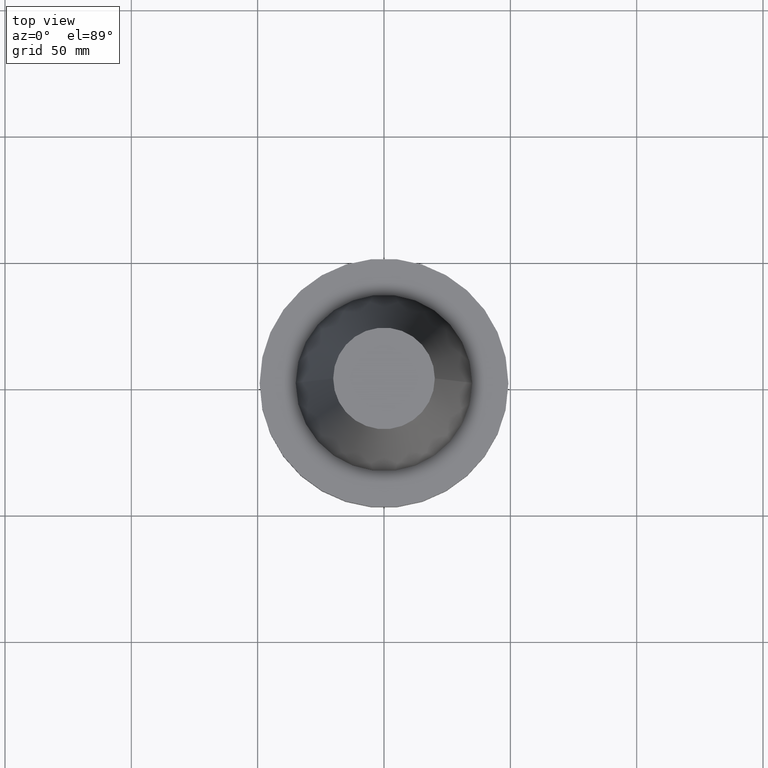
[diagram: clean part render]
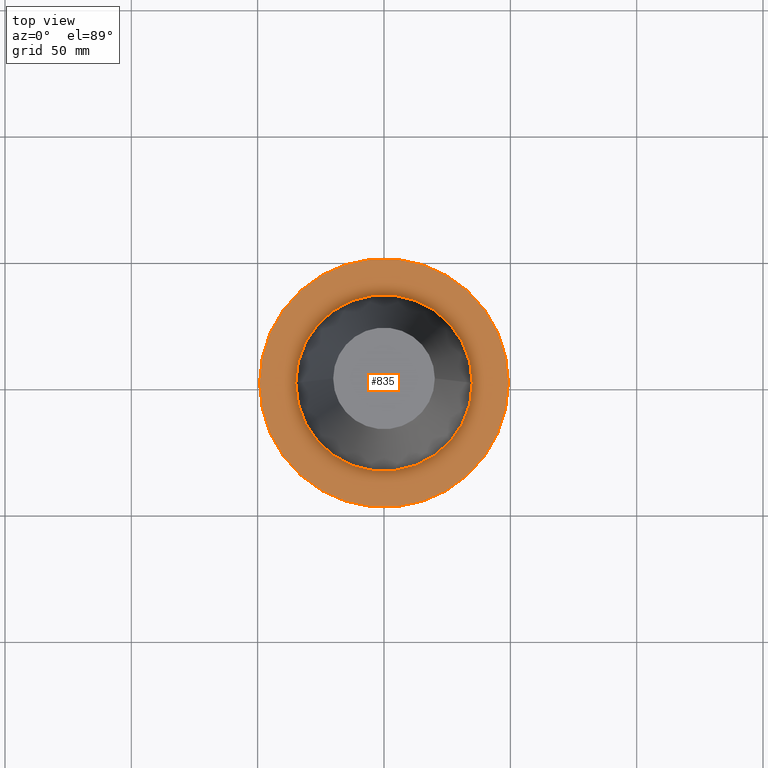
[diagram: same view with one face highlighted and labeled with its STEP entity id]
A machine part, top view. The second image highlights one B-rep face of the part: STEP entity #835.
In plain terms, the highlighted planar face has unit normal (0, 0, -1).
Its self-contained STEP definition (entity closure, byte-faithful):
#19 = CARTESIAN_POINT ( 'NONE',  ( 0.000000000000000000, 0.000000000000000000, -1.499999999999987566 ) ) ;
#20 = CARTESIAN_POINT ( 'NONE',  ( 0.000000000000000000, 49.21499999999999631, -1.499999999999992895 ) ) ;
#21 = ORIENTED_EDGE ( 'NONE', *, *, #325, .F. ) ;
#93 = AXIS2_PLACEMENT_3D ( 'NONE', #515, #295, #627 ) ;
#98 = VERTEX_POINT ( 'NONE', #457 ) ;
#101 = DIRECTION ( 'NONE',  ( 0.000000000000000000, 0.000000000000000000, -1.000000000000000000 ) ) ;
#114 = CARTESIAN_POINT ( 'NONE',  ( -34.92499999999999005, 4.277078946022130098E-15, -1.499999999999987566 ) ) ;
#130 = AXIS2_PLACEMENT_3D ( 'NONE', #20, #101, #417 ) ;
#134 = CIRCLE ( 'NONE', #684, 34.92499999999999005 ) ;
#162 = CARTESIAN_POINT ( 'NONE',  ( 0.000000000000000000, 0.000000000000000000, -1.499999999999987566 ) ) ;
#212 = CIRCLE ( 'NONE', #324, 34.92499999999999005 ) ;
#224 = CIRCLE ( 'NONE', #93, 49.21499999999999631 ) ;
#265 = VERTEX_POINT ( 'NONE', #730 ) ;
#295 = DIRECTION ( 'NONE',  ( -0.000000000000000000, -0.000000000000000000, 1.000000000000000000 ) ) ;
#309 = EDGE_LOOP ( 'NONE', ( #368, #805 ) ) ;
#324 = AXIS2_PLACEMENT_3D ( 'NONE', #705, #687, #383 ) ;
#325 = EDGE_CURVE ( 'NONE', #567, #265, #134, .T. ) ;
#350 = EDGE_CURVE ( 'NONE', #425, #98, #224, .T. ) ;
#355 = EDGE_CURVE ( 'NONE', #265, #567, #212, .T. ) ;
#364 = PLANE ( 'NONE',  #130 ) ;
#368 = ORIENTED_EDGE ( 'NONE', *, *, #350, .T. ) ;
#383 = DIRECTION ( 'NONE',  ( 1.000000000000000000, 0.000000000000000000, 0.000000000000000000 ) ) ;
#409 = EDGE_LOOP ( 'NONE', ( #794, #21 ) ) ;
#417 = DIRECTION ( 'NONE',  ( -1.000000000000000000, 0.000000000000000000, -0.000000000000000000 ) ) ;
#425 = VERTEX_POINT ( 'NONE', #618 ) ;
#426 = DIRECTION ( 'NONE',  ( 1.000000000000000000, 0.000000000000000000, 0.000000000000000000 ) ) ;
#432 = DIRECTION ( 'NONE',  ( 1.000000000000000000, 0.000000000000000000, 0.000000000000000000 ) ) ;
#457 = CARTESIAN_POINT ( 'NONE',  ( -49.21499999999999631, 6.027099222003697826E-15, -1.499999999999987566 ) ) ;
#515 = CARTESIAN_POINT ( 'NONE',  ( 0.000000000000000000, 0.000000000000000000, -1.499999999999987566 ) ) ;
#567 = VERTEX_POINT ( 'NONE', #114 ) ;
#618 = CARTESIAN_POINT ( 'NONE',  ( 49.21499999999999631, 0.000000000000000000, -1.499999999999987566 ) ) ;
#627 = DIRECTION ( 'NONE',  ( 1.000000000000000000, 0.000000000000000000, 0.000000000000000000 ) ) ;
#682 = DIRECTION ( 'NONE',  ( -0.000000000000000000, -0.000000000000000000, 1.000000000000000000 ) ) ;
#684 = AXIS2_PLACEMENT_3D ( 'NONE', #19, #741, #426 ) ;
#687 = DIRECTION ( 'NONE',  ( -0.000000000000000000, -0.000000000000000000, 1.000000000000000000 ) ) ;
#705 = CARTESIAN_POINT ( 'NONE',  ( 0.000000000000000000, 0.000000000000000000, -1.499999999999987566 ) ) ;
#730 = CARTESIAN_POINT ( 'NONE',  ( 34.92499999999999005, 0.000000000000000000, -1.499999999999987566 ) ) ;
#741 = DIRECTION ( 'NONE',  ( -0.000000000000000000, -0.000000000000000000, 1.000000000000000000 ) ) ;
#742 = FACE_BOUND ( 'NONE', #409, .T. ) ;
#794 = ORIENTED_EDGE ( 'NONE', *, *, #355, .F. ) ;
#803 = AXIS2_PLACEMENT_3D ( 'NONE', #162, #682, #432 ) ;
#805 = ORIENTED_EDGE ( 'NONE', *, *, #811, .T. ) ;
#811 = EDGE_CURVE ( 'NONE', #98, #425, #852, .T. ) ;
#817 = FACE_OUTER_BOUND ( 'NONE', #309, .T. ) ;
#835 = ADVANCED_FACE ( 'NONE', ( #742, #817 ), #364, .F. ) ;
#852 = CIRCLE ( 'NONE', #803, 49.21499999999999631 ) ;